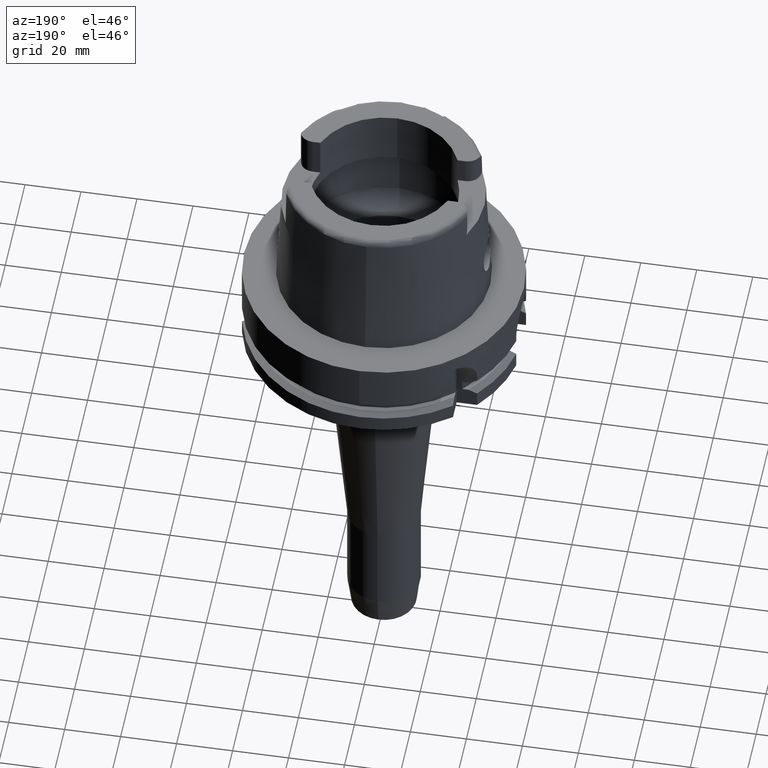
[diagram: clean part render]
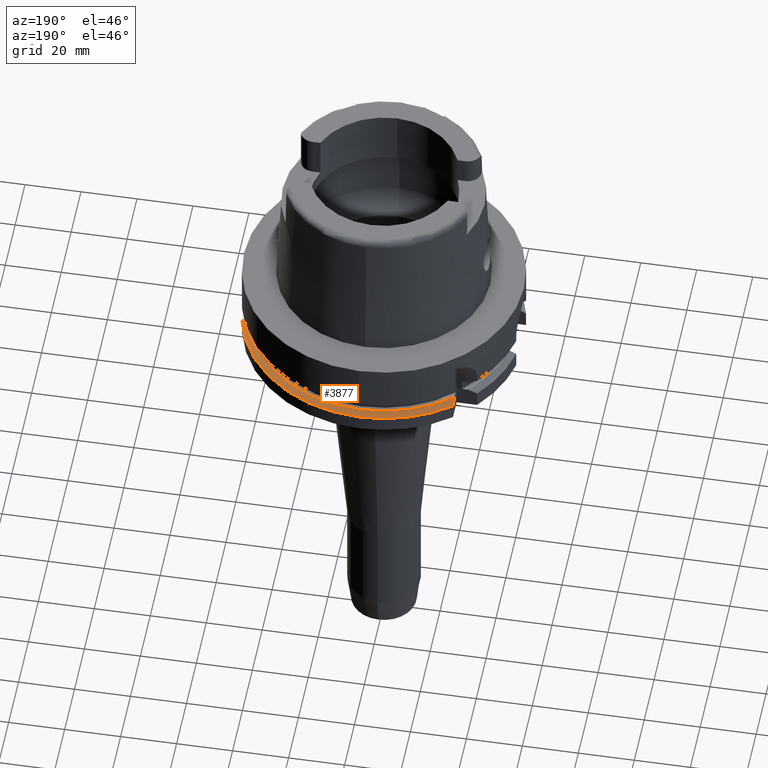
[diagram: same view with one face highlighted and labeled with its STEP entity id]
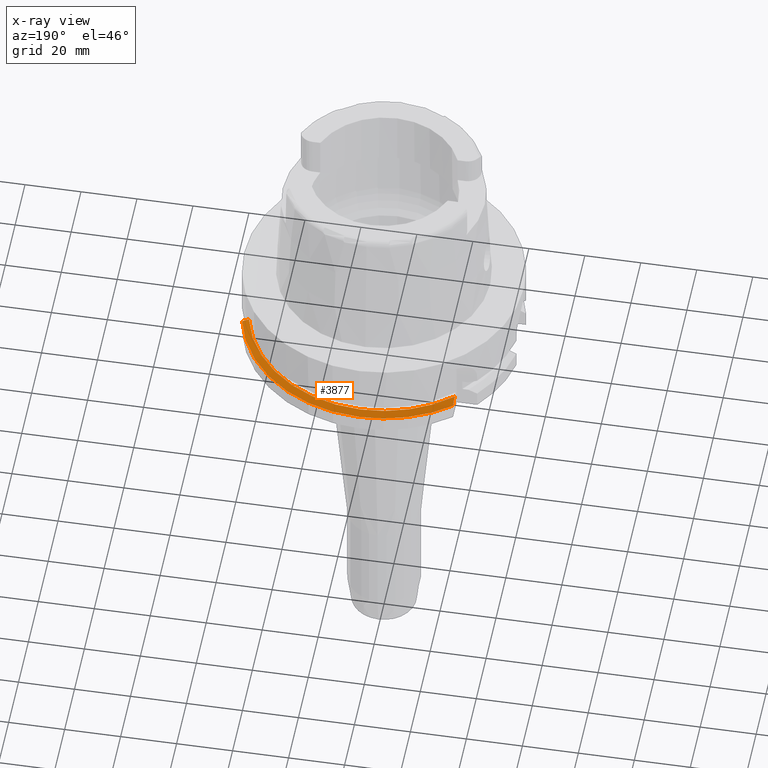
[diagram: x-ray of the same camera — body ghosted, the highlighted face saturated]
A machine part, auxiliary view. The second image highlights one B-rep face of the part: STEP entity #3877.
The next image is the same camera in x-ray: the body ghosted, the highlighted face saturated — about 0% of this face is hidden behind the body in this view.
In plain terms, the highlighted conical surface has half-angle 60 deg.
Its self-contained STEP definition (entity closure, byte-faithful):
#1670=CARTESIAN_POINT('',(0.E0,0.E0,-2.1875E1));
#1671=DIRECTION('',(0.E0,0.E0,-1.E0));
#1672=DIRECTION('',(-6.614507215588E-1,7.499886285467E-1,0.E0));
#1673=AXIS2_PLACEMENT_3D('',#1670,#1671,#1672);
#1678=CARTESIAN_POINT('',(0.E0,0.E0,-2.1875E1));
#1679=DIRECTION('',(0.E0,0.E0,-1.E0));
#1680=DIRECTION('',(0.E0,1.E0,0.E0));
#1681=AXIS2_PLACEMENT_3D('',#1678,#1679,#1680);
#1702=CARTESIAN_POINT('',(-3.150000097289E1,3.571639618402E1,-2.1875E1));
#1703=CARTESIAN_POINT('',(-3.150000097289E1,3.605789002737E1,
-2.202286891912E1));
#1704=CARTESIAN_POINT('',(-3.150000002063E1,3.674380017621E1,
-2.232173054124E1));
#1705=CARTESIAN_POINT('',(-3.149999846845E1,3.778158713267E1,
-2.277929841516E1));
#1706=CARTESIAN_POINT('',(-3.150000355986E1,3.847935690318E1,
-2.309050172011E1));
#1707=CARTESIAN_POINT('',(-3.150000355986E1,3.882975374283E1,
-2.324760820812E1));
#1712=CARTESIAN_POINT('',(0.E0,0.E0,-2.324759526419E1));
#1713=DIRECTION('',(0.E0,0.E0,-1.E0));
#1714=DIRECTION('',(-6.3E-1,7.765951326142E-1,0.E0));
#1715=AXIS2_PLACEMENT_3D('',#1712,#1713,#1714);
#1720=CARTESIAN_POINT('',(0.E0,0.E0,-2.324759526419E1));
#1721=DIRECTION('',(0.E0,0.E0,-1.E0));
#1722=DIRECTION('',(0.E0,1.E0,0.E0));
#1723=AXIS2_PLACEMENT_3D('',#1720,#1721,#1722);
#1728=CARTESIAN_POINT('',(4.877499359303E1,1.1E1,-2.324759526419E1));
#1729=CARTESIAN_POINT('',(4.850399904748E1,1.1E1,-2.309496975038E1));
#1730=CARTESIAN_POINT('',(4.796191616323E1,1.1E1,-2.278979543230E1));
#1731=CARTESIAN_POINT('',(4.714851446810E1,1.1E1,-2.233225649733E1));
#1732=CARTESIAN_POINT('',(4.660605711265E1,1.1E1,-2.202738808211E1));
#1733=CARTESIAN_POINT('',(4.633477721644E1,1.1E1,-2.1875E1));
#2455=CARTESIAN_POINT('',(-3.150000355986E1,3.882975374283E1,
-2.324760820812E1));
#2456=VERTEX_POINT('',#2455);
#2457=VERTEX_POINT('',#1702);
#2475=CARTESIAN_POINT('',(4.877499359303E1,1.1E1,-2.324759526419E1));
#2476=VERTEX_POINT('',#2475);
#2477=CARTESIAN_POINT('',(0.E0,5.E1,-2.324759526419E1));
#2478=VERTEX_POINT('',#2477);
#2514=VERTEX_POINT('',#1733);
#2515=CARTESIAN_POINT('',(-1.598721155460E-14,4.762259526419E1,-2.1875E1));
#2516=VERTEX_POINT('',#2515);
#3864=CARTESIAN_POINT('',(0.E0,0.E0,-2.256129763210E1));
#3865=DIRECTION('',(0.E0,0.E0,-1.E0));
#3866=DIRECTION('',(0.E0,-1.E0,0.E0));
#3867=AXIS2_PLACEMENT_3D('',#3864,#3865,#3866);
#3868=CONICAL_SURFACE('',#3867,4.881129763209E1,6.E1);
#3869=ORIENTED_EDGE('',*,*,#3530,.T.);
#3870=ORIENTED_EDGE('',*,*,#3561,.T.);
#3871=ORIENTED_EDGE('',*,*,#3559,.T.);
#3872=ORIENTED_EDGE('',*,*,#3586,.T.);
#3873=ORIENTED_EDGE('',*,*,#3856,.F.);
#3874=ORIENTED_EDGE('',*,*,#3854,.F.);
#3875=EDGE_LOOP('',(#3869,#3870,#3871,#3872,#3873,#3874));
#3876=FACE_OUTER_BOUND('',#3875,.F.);
#1674=CIRCLE('',#1673,4.762259526419E1);
#1682=CIRCLE('',#1681,4.762259526419E1);
#1708=B_SPLINE_CURVE_WITH_KNOTS('',3,(#1702,#1703,#1704,#1705,#1706,#1707),
.UNSPECIFIED.,.F.,.F.,(4,1,1,4),(0.E0,3.333333333333E-1,6.666666666667E-1,1.E0),
.UNSPECIFIED.);
#1716=CIRCLE('',#1715,5.E1);
#1724=CIRCLE('',#1723,5.E1);
#1734=B_SPLINE_CURVE_WITH_KNOTS('',3,(#1728,#1729,#1730,#1731,#1732,#1733),
.UNSPECIFIED.,.F.,.F.,(4,1,1,4),(0.E0,3.333333333333E-1,6.666666666667E-1,1.E0),
.UNSPECIFIED.);
#3530=EDGE_CURVE('',#2457,#2456,#1708,.T.);
#3559=EDGE_CURVE('',#2478,#2476,#1724,.T.);
#3561=EDGE_CURVE('',#2456,#2478,#1716,.T.);
#3586=EDGE_CURVE('',#2476,#2514,#1734,.T.);
#3854=EDGE_CURVE('',#2457,#2516,#1674,.T.);
#3856=EDGE_CURVE('',#2516,#2514,#1682,.T.);
#3877=ADVANCED_FACE('',(#3876),#3868,.T.);